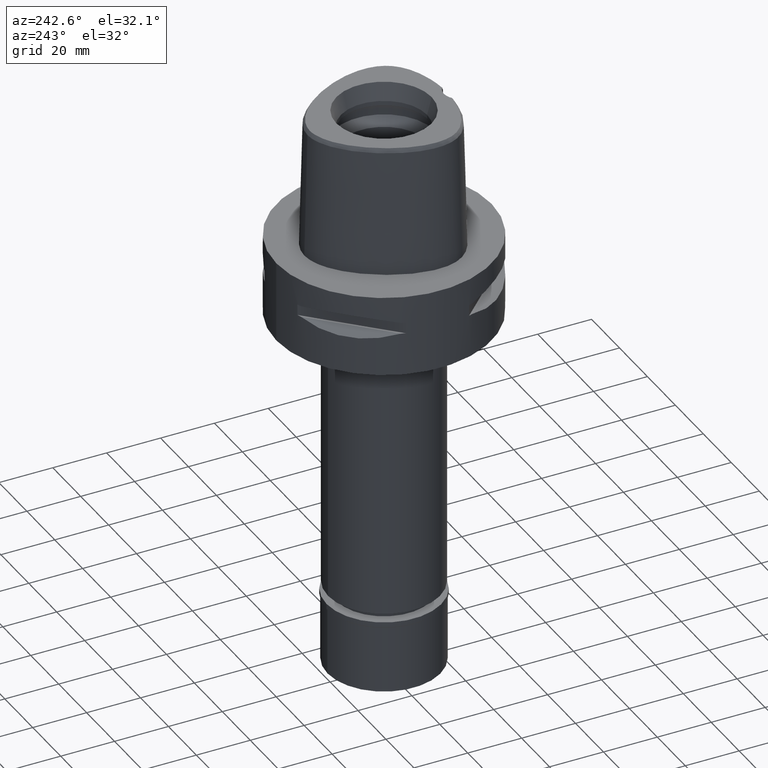
[diagram: clean part render]
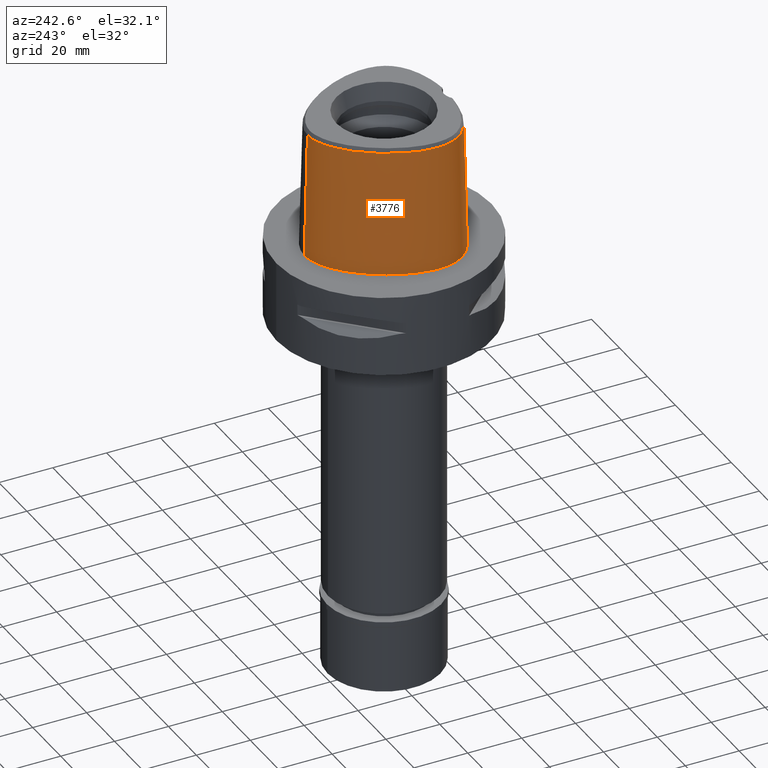
[diagram: same view with one face highlighted and labeled with its STEP entity id]
A machine part, auxiliary view. The second image highlights one B-rep face of the part: STEP entity #3776.
In plain terms, the highlighted face is a freeform B-spline surface patch.
Its self-contained STEP definition (entity closure, byte-faithful):
#2 = CARTESIAN_POINT ( 'NONE',  ( -11.74025986062749283, -24.13566408421613829, -8.981630610148221006E-07 ) ) ;
#31 = CARTESIAN_POINT ( 'NONE',  ( -13.21796082028640029, 24.04386720451877579, -8.981630610148221006E-07 ) ) ;
#78 = CARTESIAN_POINT ( 'NONE',  ( -1.733314166582773153, -24.81359117582309892, 29.20692116581517084 ) ) ;
#98 = CARTESIAN_POINT ( 'NONE',  ( 0.8462420188541999178, -25.18772735998999934, 15.19676978505999898 ) ) ;
#125 = CARTESIAN_POINT ( 'NONE',  ( -4.560197131398992632, -24.30012325357083469, 42.17356967723666372 ) ) ;
#143 = CARTESIAN_POINT ( 'NONE',  ( -3.994669282579361269, -24.83794919743792562, 22.82040209576821610 ) ) ;
#174 = CARTESIAN_POINT ( 'NONE',  ( -4.212409792926581353, -24.80756021599265537, 23.28005703556016925 ) ) ;
#195 = CARTESIAN_POINT ( 'NONE',  ( 0.8586475202579000321, 28.76398146971000003, 31.32395404676000084 ) ) ;
#196 = CARTESIAN_POINT ( 'NONE',  ( -4.525164906393139397, -24.74975131237584591, 24.43996234641500465 ) ) ;
#219 = EDGE_CURVE ( 'NONE', #2935, #3678, #4025, .T. ) ;
#221 = CARTESIAN_POINT ( 'NONE',  ( -4.406213798168644225, -24.77565163120073777, 23.85472934568140957 ) ) ;
#251 = CARTESIAN_POINT ( 'NONE',  ( -3.029613744919227081, -24.76954858878827892, 28.39612668127736939 ) ) ;
#275 = CARTESIAN_POINT ( 'NONE',  ( -9.316733117264998754, 26.81182150639000028, -0.9304144766363000585 ) ) ;
#282 = EDGE_CURVE ( 'NONE', #2354, #1239, #4342, .T. ) ;
#285 = CARTESIAN_POINT ( 'NONE',  ( -11.43620194735589379, -23.01113699853141981, 46.52070903171008354 ) ) ;
#299 = CARTESIAN_POINT ( 'NONE',  ( -26.36214112472999815, -1.945111148090999942, 47.45113830844999825 ) ) ;
#300 = CARTESIAN_POINT ( 'NONE',  ( -1.791332517422943749, -25.02133236723710041, 20.81740716610678987 ) ) ;
#330 = CARTESIAN_POINT ( 'NONE',  ( -26.79474625773000085, 1.906447387331000165, -0.9304144766363000585 ) ) ;
#333 = CARTESIAN_POINT ( 'NONE',  ( -25.63812391808772162, -14.80217774563364230, -8.981630610148221006E-07 ) ) ;
#362 = CARTESIAN_POINT ( 'NONE',  ( -26.01411827027999735, 1.699187959838000195, 31.32395404676000084 ) ) ;
#364 = CARTESIAN_POINT ( 'NONE',  ( -1.754298049354317213, -25.02308377135080875, 20.80178576367013932 ) ) ;
#366 = CARTESIAN_POINT ( 'NONE',  ( -27.10051719538249770, -11.41106445930717328, -8.981630610148221006E-07 ) ) ;
#371 = CARTESIAN_POINT ( 'NONE',  ( -1.344666072917000002E-11, 28.41206021534999593, 46.52071719450999154 ) ) ;
#388 = CARTESIAN_POINT ( 'NONE',  ( -16.83227270842000323, 18.76477913204999837, 47.45113830844999825 ) ) ;
#392 = CARTESIAN_POINT ( 'NONE',  ( -27.85475991996640488, -5.337968749434820914, -8.981630610148221006E-07 ) ) ;
#398 = CARTESIAN_POINT ( 'NONE',  ( -20.71467387648235459, -18.66855143331104827, 46.52070903171008354 ) ) ;
#447 = CARTESIAN_POINT ( 'NONE',  ( -11.43012069054000079, -22.98864609234000156, 47.45113830844999825 ) ) ;
#449 = CARTESIAN_POINT ( 'NONE',  ( -3.149084879360997125, 29.34015627206903787, -8.981630610148221006E-07 ) ) ;
#475 = CARTESIAN_POINT ( 'NONE',  ( -1.676286854296592299, -24.81504355059169242, 29.23004141242347842 ) ) ;
#479 = ORIENTED_EDGE ( 'NONE', *, *, #219, .T. ) ;
#493 = CARTESIAN_POINT ( 'NONE',  ( -20.94550185271999965, -18.97246395069999991, 31.32395404676000084 ) ) ;
#501 = CARTESIAN_POINT ( 'NONE',  ( 1.372734075386999954E-14, -24.83629963747999980, 29.55000000000000071 ) ) ;
#544 = CARTESIAN_POINT ( 'NONE',  ( -3.459328791574007411, -24.75086403572711191, 27.97515479134742833 ) ) ;
#564 = CARTESIAN_POINT ( 'NONE',  ( 0.5552374614105000106, 28.37983258526000085, 47.45113830844999825 ) ) ;
#565 = CARTESIAN_POINT ( 'NONE',  ( -3.205390121192459141, -24.76204090357540721, 28.22925085367090858 ) ) ;
#592 = CARTESIAN_POINT ( 'NONE',  ( -4.441732659387183979, -24.76864030037668840, 24.00221451032574294 ) ) ;
#600 = B_SPLINE_CURVE_WITH_KNOTS ( 'NONE', 3,
 ( #2272, #810, #4644, #5014 ),
 .UNSPECIFIED., .F., .F.,
 ( 4, 4 ),
 ( 0.0000000000000000000, 1.000000000000000000 ),
 .UNSPECIFIED. ) ;
#616 = CARTESIAN_POINT ( 'NONE',  ( -2.349040166738168622, -24.99044712210619679, 21.10040994411799176 ) ) ;
#626 = CARTESIAN_POINT ( 'NONE',  ( 3.071360863650999976E-11, 29.57499999998999840, 4.999704354228999432E-14 ) ) ;
#638 = CARTESIAN_POINT ( 'NONE',  ( -2.944900302943596948, -24.77298581947536249, 28.46923970402222182 ) ) ;
#664 = CARTESIAN_POINT ( 'NONE',  ( -26.50159628839000092, -8.602222732491000556, 47.45113830844999825 ) ) ;
#676 = CARTESIAN_POINT ( 'NONE',  ( -5.572548441001297981, -24.09475885057384303, 46.52070903171008354 ) ) ;
#690 = CARTESIAN_POINT ( 'NONE',  ( -23.81701507792000072, -15.41783917477999921, 47.45113830844999825 ) ) ;
#714 = CARTESIAN_POINT ( 'NONE',  ( -27.06950060128000146, -5.357664959697000739, 31.32395404676000084 ) ) ;
#739 = CARTESIAN_POINT ( 'NONE',  ( -26.66520868642000153, -5.367805582511000040, 47.45113830844999825 ) ) ;
#771 = CARTESIAN_POINT ( 'NONE',  ( -2.979937750745999647, 28.57037856398000031, 31.32395404676000084 ) ) ;
#782 = CARTESIAN_POINT ( 'NONE',  ( -16.85032607016413309, 18.77963051275659012, 46.52070903171008354 ) ) ;
#810 = CARTESIAN_POINT ( 'NONE',  ( -4.849489465481114265E-09, -24.66214466420069229, 36.51666702990934255 ) ) ;
#823 = CARTESIAN_POINT ( 'NONE',  ( -26.34912739279852190, -13.39455079027902329, -8.981630610148221006E-07 ) ) ;
#846 = CARTESIAN_POINT ( 'NONE',  ( -18.36798846969000110, -21.11924012392999828, 15.19676978505999898 ) ) ;
#852 = CARTESIAN_POINT ( 'NONE',  ( -1.003044292487226929, -24.82866638025620887, 29.44055839642895478 ) ) ;
#921 = CARTESIAN_POINT ( 'NONE',  ( -4.515545264919025747, -24.72200876241212697, 25.57765437787082163 ) ) ;
#941 = CARTESIAN_POINT ( 'NONE',  ( 0.8850788444128999677, 29.16624661484000214, 15.19676978505999898 ) ) ;
#942 = CARTESIAN_POINT ( 'NONE',  ( -3.797137772289172375, -24.86229941254662279, 22.49313827486260564 ) ) ;
#960 = CARTESIAN_POINT ( 'NONE',  ( -0.7475778414347999945, 29.63225228728000005, -0.9304144766363000585 ) ) ;
#962 = CARTESIAN_POINT ( 'NONE',  ( -2.771982096822934505, -24.77983138410381869, 28.61121349796145807 ) ) ;
#994 = CARTESIAN_POINT ( 'NONE',  ( -4.192714366875117449, -24.72178541175449595, 26.76740225216487090 ) ) ;
#1018 = CARTESIAN_POINT ( 'NONE',  ( -4.547910621292748701, -24.72974527037225911, 25.14250056299538727 ) ) ;
#1032 = EDGE_CURVE ( 'NONE', #2935, #2802, #3987, .T. ) ;
#1043 = CARTESIAN_POINT ( 'NONE',  ( -21.30723583794999954, 12.30173104416000029, 47.45113830844999825 ) ) ;
#1070 = CARTESIAN_POINT ( 'NONE',  ( -24.95856549634000032, -14.40983450743999938, 31.32395404676000084 ) ) ;
#1096 = CARTESIAN_POINT ( 'NONE',  ( -17.77103258628000049, 19.53703864447000171, -0.9304144766363000585 ) ) ;
#1098 = CARTESIAN_POINT ( 'NONE',  ( -1.165430911961757188, -25.05044697737379167, 20.55812161079594347 ) ) ;
#1105 = CARTESIAN_POINT ( 'NONE',  ( -25.64632274977799398, 1.601536978524745969, 46.52070903171008354 ) ) ;
#1117 = CARTESIAN_POINT ( 'NONE',  ( -22.00846693109999919, 12.70659196839000060, 15.19676978505999898 ) ) ;
#1119 = CARTESIAN_POINT ( 'NONE',  ( -1.769098408929377975, -25.02238666794960054, 20.80800104489343383 ) ) ;
#1120 = CARTESIAN_POINT ( 'NONE',  ( -27.68378756080767644, -8.751933596583231889, -8.981630610148221006E-07 ) ) ;
#1128 = EDGE_CURVE ( 'NONE', #1599, #2354, #2683, .T. ) ;
#1146 = CARTESIAN_POINT ( 'NONE',  ( -25.23075706182000033, 6.836210430566000085, -0.9304144766363000585 ) ) ;
#1177 = CARTESIAN_POINT ( 'NONE',  ( -18.56135208395999925, -21.47443746689999955, -0.9304144766363000585 ) ) ;
#1205 = EDGE_LOOP ( 'NONE', ( #4036, #3133, #3713, #2844, #4057, #479, #2349, #2022 ) ) ;
#1212 = VERTEX_POINT ( 'NONE', #2726 ) ;
#1227 = CARTESIAN_POINT ( 'NONE',  ( -6.584202217011000613, -24.46732447774000008, 31.32395404676000084 ) ) ;
#1239 = VERTEX_POINT ( 'NONE', #1551 ) ;
#1254 = EDGE_CURVE ( 'NONE', #3678, #2244, #3877, .T. ) ;
#1257 = CARTESIAN_POINT ( 'NONE',  ( -18.17462485540999850, -20.76404278096999789, 31.32395404676000084 ) ) ;
#1261 = EDGE_CURVE ( 'NONE', #1212, #1599, #600, .T. ) ;
#1262 = CARTESIAN_POINT ( 'NONE',  ( -1.984502176480205771, -24.80676203802992319, 29.09712838306113269 ) ) ;
#1276 = CARTESIAN_POINT ( 'NONE',  ( -14.86558287291999925, -21.85772792966999845, 47.45113830844999825 ) ) ;
#1279 = CARTESIAN_POINT ( 'NONE',  ( -2.492689275653129588, -24.79011428768484748, 28.80645659143079484 ) ) ;
#1303 = CARTESIAN_POINT ( 'NONE',  ( -4.494536868534346752, -24.72037511897826789, 25.72370608056143837 ) ) ;
#1331 = CARTESIAN_POINT ( 'NONE',  ( -4.536359085941239044, -24.72544551544415015, 25.35955479186053196 ) ) ;
#1353 = FACE_OUTER_BOUND ( 'NONE', #1205, .T. ) ;
#1354 = CARTESIAN_POINT ( 'NONE',  ( -3.310528231614959349, -24.91386642802240203, 21.87824841565020151 ) ) ;
#1375 = CARTESIAN_POINT ( 'NONE',  ( 0.5727458550623999445, 28.78269979473000362, 31.32395404676000084 ) ) ;
#1378 = CARTESIAN_POINT ( 'NONE',  ( -4.340344041599830227, -24.78724112967246995, 23.63256450709636525 ) ) ;
#1404 = CARTESIAN_POINT ( 'NONE',  ( -4.140463633215315298, -24.72339410617355782, 26.88684090363467050 ) ) ;
#1426 = CARTESIAN_POINT ( 'NONE',  ( -26.76156705728999796, -1.884109319980999953, 31.32395404676000084 ) ) ;
#1427 = CARTESIAN_POINT ( 'NONE',  ( -1.843442154715413395, -25.01881181296652912, 20.83994273181284385 ) ) ;
#1451 = CARTESIAN_POINT ( 'NONE',  ( -26.37046814540000028, -13.40391019819000107, -0.9304144766363000585 ) ) ;
#1482 = CARTESIAN_POINT ( 'NONE',  ( -17.14519266769999817, 19.02219896951999800, 31.32395404676000084 ) ) ;
#1495 = CARTESIAN_POINT ( 'NONE',  ( -5.810185802762860341, 27.27372406630062329, 46.52070903171008354 ) ) ;
#1509 = CARTESIAN_POINT ( 'NONE',  ( -25.62380427656000137, 1.595558246091000054, 47.45113830844999825 ) ) ;
#1534 = CARTESIAN_POINT ( 'NONE',  ( -27.70696775902000297, -8.754869100832999962, -0.9304144766363000585 ) ) ;
#1546 = CARTESIAN_POINT ( 'NONE',  ( -25.97777222568481648, -11.09135444107796786, 46.52070903171008354 ) ) ;
#1551 = CARTESIAN_POINT ( 'NONE',  ( -1.180411260321999901E-11, -25.57499999999999929, 5.639932965095998436E-14 ) ) ;
#1555 = CARTESIAN_POINT ( 'NONE',  ( -1.541632516112587448, -24.57506718850393312, 40.00000010711481480 ) ) ;
#1566 = CARTESIAN_POINT ( 'NONE',  ( -11.53552746531000039, -23.37848226520000239, 31.32395404676000084 ) ) ;
#1598 = B_SPLINE_CURVE_WITH_KNOTS ( 'NONE', 3,
 ( #2283, #3560, #449, #4280, #4360, #31, #2314, #4314, #2727, #3116, #3861, #392, #1120, #366, #823, #333, #1624, #2394, #2671, #3173, #3531, #2, #4253, #3974, #5054 ),
 .UNSPECIFIED., .F., .F.,
 ( 4, 1, 1, 1, 1, 1, 1, 1, 1, 1, 1, 1, 1, 1, 1, 1, 1, 1, 1, 1, 1, 1, 4 ),
 ( 0.0000000000000000000, 0.04166666666704999661, 0.08333333333368000972, 0.1250000000003000100, 0.1666666666670000019, 0.2500000000002000067, 0.3333333333335000148, 0.4166666666668000230, 0.4583333333333999837, 0.5000000000001000311, 0.5416666666667000474, 0.5833333333333000637, 0.6250000000000000000, 0.6458333333333000637, 0.6666666666667000474, 0.6874999999999000799, 0.7083333333332000326, 0.7499999999999000799, 0.7916666666666000163, 0.8333333333331000015, 0.8749999999998000488, 0.9166666666664999852, 1.000000000000000000 ),
 .UNSPECIFIED. ) ;
#1599 = VERTEX_POINT ( 'NONE', #3587 ) ;
#1604 = CARTESIAN_POINT ( 'NONE',  ( -4.516620139914707011, -24.24973684088320525, 44.34713935447333455 ) ) ;
#1622 = CARTESIAN_POINT ( 'NONE',  ( -11.64093424006999911, -23.76831843806999700, 15.19676978505999898 ) ) ;
#1624 = CARTESIAN_POINT ( 'NONE',  ( -24.77458495306543540, -16.12173829457910301, -8.981630610148221006E-07 ) ) ;
#1671 = CARTESIAN_POINT ( 'NONE',  ( 0.5689259951226000034, -25.59577895909999867, -0.9304144766363000585 ) ) ;
#1718 = CARTESIAN_POINT ( 'NONE',  ( -3.864901861996224319, -24.85421915751038924, 22.59833191710568556 ) ) ;
#1747 = CARTESIAN_POINT ( 'NONE',  ( -3.245740051672676429, -24.92006245179830159, 21.81130774429477981 ) ) ;
#1769 = CARTESIAN_POINT ( 'NONE',  ( -3.192130741525157855, -24.76262039752747057, 28.24235843699960569 ) ) ;
#1795 = CARTESIAN_POINT ( 'NONE',  ( -3.227056402119971690, -24.92183285210593269, 21.79239637393090590 ) ) ;
#1822 = CARTESIAN_POINT ( 'NONE',  ( -1.467048192861000018E-12, -25.06378435148999984, 20.44999999999999929 ) ) ;
#1844 = CARTESIAN_POINT ( 'NONE',  ( -24.48145224734999914, 6.531540504276000192, 31.32395404676000084 ) ) ;
#1866 = CARTESIAN_POINT ( 'NONE',  ( -27.47379251613999784, -5.347524336881999574, 15.19676978505999898 ) ) ;
#1867 = CARTESIAN_POINT ( 'NONE',  ( -1.979024681900256155, -25.01188081594408175, 20.90239184516246951 ) ) ;
#1879 = CARTESIAN_POINT ( 'NONE',  ( -23.83579125613754002, -15.43164133759193390, 46.52070903171008354 ) ) ;
#1896 = CARTESIAN_POINT ( 'NONE',  ( -23.44929528155000042, -17.78045351947999819, -0.9304144766363000585 ) ) ;
#1897 = CARTESIAN_POINT ( 'NONE',  ( -1.888484788632717848, -25.01654759054933308, 20.86028587657998656 ) ) ;
#1923 = CARTESIAN_POINT ( 'NONE',  ( -27.56041892240000024, -1.762105663762999930, -0.9304144766363000585 ) ) ;
#1932 = CARTESIAN_POINT ( 'NONE',  ( -26.52477687770683090, -8.605158286269631418, 46.52070903171008354 ) ) ;
#1948 = CARTESIAN_POINT ( 'NONE',  ( -2.354156828678999780, -24.81494221494999763, 31.32395404676000084 ) ) ;
#1950 = EDGE_CURVE ( 'NONE', #1212, #2802, #2745, .T. ) ;
#1959 = CARTESIAN_POINT ( 'NONE',  ( -1.467048192861000018E-12, -25.06378435148999984, 20.44999999999999929 ) ) ;
#1965 = CARTESIAN_POINT ( 'NONE',  ( -1.344666072917000002E-11, 28.41206021534999593, 46.52071719450999154 ) ) ;
#2005 = CARTESIAN_POINT ( 'NONE',  ( -17.98126124112999946, -20.40884543800000017, 47.45113830844999825 ) ) ;
#2022 = ORIENTED_EDGE ( 'NONE', *, *, #4986, .T. ) ;
#2049 = CARTESIAN_POINT ( 'NONE',  ( -6.695047936503000230, -25.26858194619999765, -0.9304144766363000585 ) ) ;
#2055 = CARTESIAN_POINT ( 'NONE',  ( -1.611811031578107345, -24.81663505490543642, 29.25526689574285299 ) ) ;
#2078 = CARTESIAN_POINT ( 'NONE',  ( -1.703896036126127278, -24.81434470502067668, 29.21892603896870710 ) ) ;
#2101 = CARTESIAN_POINT ( 'NONE',  ( -4.549596676163453424, -24.73138399865687731, 25.07048059281705576 ) ) ;
#2122 = VECTOR ( 'NONE', #3933, 1000.000000000000227 ) ;
#2127 = CARTESIAN_POINT ( 'NONE',  ( -3.790579096131103665, -24.86307050843588229, 22.48323682071577423 ) ) ;
#2155 = CARTESIAN_POINT ( 'NONE',  ( -3.232655617673357185, -24.92130312931369218, 21.79804365392788768 ) ) ;
#2178 = CARTESIAN_POINT ( 'NONE',  ( -4.098396066246055902, -24.72479182399337461, 26.97739233805751269 ) ) ;
#2201 = CARTESIAN_POINT ( 'NONE',  ( -4.198926685531663594, -24.72160612811941505, 26.75259212958650323 ) ) ;
#2229 = CARTESIAN_POINT ( 'NONE',  ( -8.894849814684999245, 26.12169678474999657, 31.32395404676000084 ) ) ;
#2239 = CARTESIAN_POINT ( 'NONE',  ( -7.937300651753208314, -23.78071178103738248, 46.52070903171008354 ) ) ;
#2244 = VERTEX_POINT ( 'NONE', #626 ) ;
#2251 = CARTESIAN_POINT ( 'NONE',  ( -3.067023398624999952, 28.96669974886000176, 15.19676978505999898 ) ) ;
#2272 = CARTESIAN_POINT ( 'NONE',  ( -1.451045074373000022E-08, -24.57504746727000011, 40.00000005214000254 ) ) ;
#2280 = CARTESIAN_POINT ( 'NONE',  ( -24.46791223562999917, -15.89630654127000042, 15.19676978505999898 ) ) ;
#2283 = CARTESIAN_POINT ( 'NONE',  ( 3.071360863650999976E-11, 29.57499999998999840, 4.999704354228999432E-14 ) ) ;
#2292 = CARTESIAN_POINT ( 'NONE',  ( -17.99241701171357022, -20.42933791837082325, 46.52070903171008354 ) ) ;
#2311 = CARTESIAN_POINT ( 'NONE',  ( -22.35908247767000034, 12.90902243050999942, -0.9304144766363000585 ) ) ;
#2314 = CARTESIAN_POINT ( 'NONE',  ( -17.75297952913286892, 19.52218751433636257, -8.981630610148221006E-07 ) ) ;
#2333 = CARTESIAN_POINT ( 'NONE',  ( -1.451045074373000022E-08, -24.57504746727000011, 40.00000005214000254 ) ) ;
#2343 = CARTESIAN_POINT ( 'NONE',  ( -12.43420517454000063, 23.14497629918999877, 47.45113830844999825 ) ) ;
#2349 = ORIENTED_EDGE ( 'NONE', *, *, #1254, .T. ) ;
#2351 = CARTESIAN_POINT ( 'NONE',  ( -12.44957317646415440, 23.16260189109142331, 46.52070903171008354 ) ) ;
#2354 = VERTEX_POINT ( 'NONE', #3488 ) ;
#2392 = CARTESIAN_POINT ( 'NONE',  ( 0.5595577616836999724, -24.78951189418000212, 31.32395404676000084 ) ) ;
#2394 = CARTESIAN_POINT ( 'NONE',  ( -23.43253030367175427, -17.76420411724730286, -8.981630610148221006E-07 ) ) ;
#2401 = CARTESIAN_POINT ( 'NONE',  ( -0.9629684636073007065, 28.41206041874476185, 46.52070903171008354 ) ) ;
#2421 = CARTESIAN_POINT ( 'NONE',  ( -1.150414049173519748, -24.82628098737378153, 29.40485804970605699 ) ) ;
#2436 = CARTESIAN_POINT ( 'NONE',  ( -2.373852718363999692, -25.21827345166000001, 15.19676978505999898 ) ) ;
#2440 = CARTESIAN_POINT ( 'NONE',  ( -2.466259342607413974, -24.79105701084885993, 28.82372012011356333 ) ) ;
#2487 = CARTESIAN_POINT ( 'NONE',  ( -4.549921019084919749, -24.74001865967037972, 24.72536366591872437 ) ) ;
#2506 = CARTESIAN_POINT ( 'NONE',  ( 0.5902542487144000205, 29.18556700418999839, 15.19676978505999898 ) ) ;
#2508 = CARTESIAN_POINT ( 'NONE',  ( -3.896481458106559881, -24.85034248778501365, 22.65020889969181539 ) ) ;
#2535 = CARTESIAN_POINT ( 'NONE',  ( -4.068466760403409488, -24.72584630863870103, 27.03834969239067121 ) ) ;
#2565 = CARTESIAN_POINT ( 'NONE',  ( -4.409270466782027498, -24.71744676443915267, 26.16158622813302514 ) ) ;
#2589 = CARTESIAN_POINT ( 'NONE',  ( -4.219931661120497779, -24.80642684597901848, 23.29859562715307675 ) ) ;
#2612 = CARTESIAN_POINT ( 'NONE',  ( -27.87808443100000133, -5.337383714068000273, -0.9304144766363000585 ) ) ;
#2638 = CARTESIAN_POINT ( 'NONE',  ( -25.26074793887000425, -12.91722051700000051, 47.45113830844999825 ) ) ;
#2648 = CARTESIAN_POINT ( 'NONE',  ( -4.472216406693000579, -24.20008985674000357, 46.52070903171000538 ) ) ;
#2667 = CARTESIAN_POINT ( 'NONE',  ( -21.65785138451999714, 12.50416150627000000, 31.32395404676000084 ) ) ;
#2671 = CARTESIAN_POINT ( 'NONE',  ( -21.42129060728322543, -19.59889650233153446, -8.981630610148221006E-07 ) ) ;
#2683 = B_SPLINE_CURVE_WITH_KNOTS ( 'NONE', 3,
 ( #501, #4395, #3614, #852, #2421, #3640, #4004, #2055, #475, #2078, #3252, #78, #3228, #1262, #3660, #4827, #2837, #4413, #2440, #1279, #4433, #4873, #2955, #962, #638, #251, #3270, #4096, #1769, #565, #3296, #544, #4562, #2882, #4459, #2535, #2178, #1404, #4123, #2929, #994, #2201, #4845, #3753, #2565, #1303, #921, #1331, #3784, #1018, #2101, #4949, #2487, #196, #592, #221, #1378, #4534, #2984, #4075, #2589, #174, #2905, #3680, #3372, #143, #3324, #2508, #1718, #3346, #4483, #942, #2127, #4153, #4505, #4897, #3704, #1354, #4176, #1747, #2155, #1795, #3729, #4921, #616, #3860, #3922, #1867, #1897, #1427, #300, #1119, #364, #4979, #1098, #4654, #1822 ),
 .UNSPECIFIED., .F., .F.,
 ( 4, 2, 2, 1, 1, 1, 2, 2, 2, 2, 1, 1, 2, 2, 2, 1, 1, 1, 2, 2, 2, 2, 2, 1, 1, 2, 2, 2, 2, 1, 2, 2, 2, 2, 1, 1, 1, 2, 2, 2, 2, 1, 1, 2, 2, 2, 1, 1, 1, 2, 2, 2, 2, 2, 1, 1, 2, 2, 4 ),
 ( 0.0000000000000000000, 0.06249999999998905043, 0.09374999999998356870, 0.1093749999999808348, 0.1171874999999794748, 0.1210937499999787531, 0.1230468749999785588, 0.1249999999999783507, 0.1562499999999781286, 0.1718749999999779621, 0.1796874999999778511, 0.1835937499999777678, 0.1855468749999779066, 0.1874999999999780176, 0.2187499999999800437, 0.2343749999999812650, 0.2421874999999818201, 0.2460937499999820977, 0.2480468749999824585, 0.2499999999999828471, 0.3125000000000057732, 0.3437500000000175415, 0.3593750000000238143, 0.3671875000000265343, 0.3710937500000279221, 0.3730468750000282552, 0.3750000000000285327, 0.4375000000000252576, 0.4687500000000232592, 0.4843750000000222045, 0.4921875000000220934, 0.5000000000000219824, 0.5625000000000232037, 0.5937500000000235367, 0.6093750000000233147, 0.6171875000000233147, 0.6210937500000229816, 0.6230468750000228706, 0.6250000000000227596, 0.6562500000000179856, 0.6718750000000157652, 0.6796875000000145439, 0.6835937500000139888, 0.6855468750000134337, 0.6875000000000128786, 0.7187500000000042188, 0.7343749999999995559, 0.7421874999999972244, 0.7460937499999960032, 0.7480468749999956701, 0.7499999999999952260, 0.8124999999999943379, 0.8437499999999938938, 0.8593749999999935607, 0.8671874999999934497, 0.8710937499999934497, 0.8730468749999934497, 0.8749999999999934497, 1.000000000000000000 ),
 .UNSPECIFIED. ) ;
#2689 = CARTESIAN_POINT ( 'NONE',  ( -3.083107012282212178, -24.50056602082081270, 40.00000010711481480 ) ) ;
#2695 = CARTESIAN_POINT ( 'NONE',  ( -13.23332856291999882, 24.06149249903999632, -0.9304144766363000585 ) ) ;
#2706 = CARTESIAN_POINT ( 'NONE',  ( -8.696078067630889308, 25.79654218449118730, 46.52070903171008354 ) ) ;
#2724 = CARTESIAN_POINT ( 'NONE',  ( -24.85610465458000107, 6.683875467420999250, 15.19676978505999898 ) ) ;
#2726 = CARTESIAN_POINT ( 'NONE',  ( -1.451045074373000022E-08, -24.57504746727000011, 40.00000005214000254 ) ) ;
#2727 = CARTESIAN_POINT ( 'NONE',  ( -25.20914252072918060, 6.827421883483855147, -8.981630610148221006E-07 ) ) ;
#2745 = B_SPLINE_CURVE_WITH_KNOTS ( 'NONE', 3,
 ( #2333, #1555, #2689, #3079 ),
 .UNSPECIFIED., .F., .F.,
 ( 4, 4 ),
 ( 0.0000000000000000000, 1.000000000000000000 ),
 .UNSPECIFIED. ) ;
#2755 = CARTESIAN_POINT ( 'NONE',  ( -2.393548608048999604, -25.62160468836999883, -0.9304144766363000585 ) ) ;
#2779 = CARTESIAN_POINT ( 'NONE',  ( 0.8392169873102000022, -24.78463084467999877, 31.32395404676000084 ) ) ;
#2783 = CARTESIAN_POINT ( 'NONE',  ( -4.472216406693000579, -24.20008985674000357, 46.52070903171000538 ) ) ;
#2802 = VERTEX_POINT ( 'NONE', #4924 ) ;
#2805 = CARTESIAN_POINT ( 'NONE',  ( -20.70054131283999865, -18.64994423039000182, 47.45113830844999825 ) ) ;
#2837 = CARTESIAN_POINT ( 'NONE',  ( -2.352923008986411268, -24.79499099983797450, 28.89459205334612335 ) ) ;
#2844 = ORIENTED_EDGE ( 'NONE', *, *, #1950, .T. ) ;
#2882 = CARTESIAN_POINT ( 'NONE',  ( -3.900686180413630577, -24.73222278675433472, 27.34720371155059837 ) ) ;
#2905 = CARTESIAN_POINT ( 'NONE',  ( -4.207829589086045985, -24.80824686016802261, 23.26889234074807078 ) ) ;
#2929 = CARTESIAN_POINT ( 'NONE',  ( -4.183313010706772417, -24.72206008749300921, 26.78965014441195791 ) ) ;
#2935 = VERTEX_POINT ( 'NONE', #2648 ) ;
#2955 = CARTESIAN_POINT ( 'NONE',  ( -2.652045588673545673, -24.78435656486181671, 28.70018943685019508 ) ) ;
#2984 = CARTESIAN_POINT ( 'NONE',  ( -4.256460948041309145, -24.80084657812259863, 23.39133378591556678 ) ) ;
#3005 = CARTESIAN_POINT ( 'NONE',  ( -26.73375370734000001, -11.30662581597000127, 15.19676978505999898 ) ) ;
#3028 = CARTESIAN_POINT ( 'NONE',  ( -25.63065467438000056, -13.07945041072999892, 31.32395404676000084 ) ) ;
#3056 = CARTESIAN_POINT ( 'NONE',  ( -6.639625076757000421, -24.86795321197000064, 15.19676978505999898 ) ) ;
#3058 = CARTESIAN_POINT ( 'NONE',  ( -26.90338677860000161, -8.653104855271999796, 31.32395404676000084 ) ) ;
#3079 = CARTESIAN_POINT ( 'NONE',  ( -4.602965878455999693, -24.35127227233000013, 40.00000000000000000 ) ) ;
#3085 = CARTESIAN_POINT ( 'NONE',  ( -24.60869384369000201, -14.20783601436000154, 47.45113830844999825 ) ) ;
#3113 = CARTESIAN_POINT ( 'NONE',  ( -27.12297207980999758, -11.41745865540999993, -0.9304144766363000585 ) ) ;
#3116 = CARTESIAN_POINT ( 'NONE',  ( -26.77222816444523446, 1.900468755770840401, -8.981630610148221006E-07 ) ) ;
#3133 = ORIENTED_EDGE ( 'NONE', *, *, #1128, .F. ) ;
#3173 = CARTESIAN_POINT ( 'NONE',  ( -18.55019650159792377, -21.45394533227971579, -8.981630610148221006E-07 ) ) ;
#3228 = CARTESIAN_POINT ( 'NONE',  ( -1.858668925429011187, -24.81033890557745281, 29.15501574767838733 ) ) ;
#3246 = CARTESIAN_POINT ( 'NONE',  ( -22.86810882073999807, -17.21714036496000233, 31.32395404676000084 ) ) ;
#3252 = CARTESIAN_POINT ( 'NONE',  ( -1.722296434336842763, -24.81387508079694015, 29.21144792399064016 ) ) ;
#3270 = CARTESIAN_POINT ( 'NONE',  ( -3.125212091967373595, -24.76551320166747416, 28.30726214217308723 ) ) ;
#3296 = CARTESIAN_POINT ( 'NONE',  ( -3.211065830876445037, -24.76179211193618457, 28.22361125334742482 ) ) ;
#3324 = CARTESIAN_POINT ( 'NONE',  ( -3.957281473798043514, -24.84276546235786043, 22.75305380327923999 ) ) ;
#3346 = CARTESIAN_POINT ( 'NONE',  ( -3.825895809632645417, -24.85889621362734303, 22.53711802513210216 ) ) ;
#3372 = CARTESIAN_POINT ( 'NONE',  ( -4.098306025962241250, -24.82420565877257346, 23.01795395542374578 ) ) ;
#3390 = B_SPLINE_SURFACE_WITH_KNOTS ( 'NONE', 3, 3, ( 
 ( #4093, #941, #195, #3728 ),
 ( #4948, #2506, #1375, #564 ),
 ( #960, #3781, #3832, #3921 ),
 ( #4581, #2251, #771, #3891 ),
 ( #4200, #3500, #3808, #3443 ),
 ( #275, #3474, #2229, #4977 ),
 ( #2695, #4631, #5026, #2343 ),
 ( #1096, #4276, #1482, #388 ),
 ( #2311, #1117, #2667, #1043 ),
 ( #1146, #2724, #1844, #5078 ),
 ( #330, #4251, #362, #1509 ),
 ( #1923, #3396, #1426, #299 ),
 ( #2612, #1866, #714, #739 ),
 ( #1534, #4226, #3058, #664 ),
 ( #3113, #3005, #4652, #3417 ),
 ( #1451, #4997, #3028, #2638 ),
 ( #4605, #4683, #1070, #3085 ),
 ( #3857, #2280, #4310, #690 ),
 ( #1896, #5051, #3246, #4719 ),
 ( #3635, #3529, #493, #2805 ),
 ( #1177, #846, #1257, #2005 ),
 ( #4744, #4821, #4384, #1276 ),
 ( #3998, #1622, #1566, #447 ),
 ( #2049, #3056, #1227, #4795 ),
 ( #2755, #2436, #1948, #4427 ),
 ( #1671, #4337, #2392, #4768 ),
 ( #3945, #98, #2779, #3971 ) ),
 .UNSPECIFIED., .F., .F., .F.,
 ( 4, 1, 1, 1, 1, 1, 1, 1, 1, 1, 1, 1, 1, 1, 1, 1, 1, 1, 1, 1, 1, 1, 1, 1, 4 ),
 ( 4, 4 ),
 ( -0.01204223939038000062, 0.0000000000000000000, 0.04166666666704999661, 0.08333333333368000972, 0.1250000000003000100, 0.1666666666670000019, 0.2500000000002000067, 0.3333333333335000148, 0.4166666666668000230, 0.4583333333333999837, 0.5000000000001000311, 0.5416666666667000474, 0.5833333333333000637, 0.6250000000000000000, 0.6458333333333000637, 0.6666666666667000474, 0.6874999999999000799, 0.7083333333332000326, 0.7499999999999000799, 0.7916666666666000163, 0.8333333333331000015, 0.8749999999998000488, 0.9166666666664999852, 1.000000000000000000, 1.008851807892999997 ),
 ( 5.338237064194999841E-09, 0.9999997277498999804 ),
 .UNSPECIFIED. ) ;
#3396 = CARTESIAN_POINT ( 'NONE',  ( -27.16099298984999777, -1.823107491872000052, 15.19676978505999898 ) ) ;
#3417 = CARTESIAN_POINT ( 'NONE',  ( -25.95531696239000041, -11.08496013709000039, 47.45113830844999825 ) ) ;
#3443 = CARTESIAN_POINT ( 'NONE',  ( -5.801139433146000002, 27.25218159654000161, 47.45113830844999825 ) ) ;
#3455 = CARTESIAN_POINT ( 'NONE',  ( -24.62887906780877501, -14.21948995895251144, 46.52070903171008354 ) ) ;
#3474 = CARTESIAN_POINT ( 'NONE',  ( -9.105791465975000776, 26.46675914556999842, 15.19676978505999898 ) ) ;
#3486 = CARTESIAN_POINT ( 'NONE',  ( -21.32746397970838004, 12.31340991043913924, 46.52070903171008354 ) ) ;
#3488 = CARTESIAN_POINT ( 'NONE',  ( -1.467048192861000018E-12, -25.06378435148999984, 20.44999999999999929 ) ) ;
#3500 = CARTESIAN_POINT ( 'NONE',  ( -6.114741924721999844, 27.99897533564999819, 15.19676978505999898 ) ) ;
#3509 = DIRECTION ( 'NONE',  ( -5.053220550043809941E-13, -0.02499051295420905497, -0.9996876883618630583 ) ) ;
#3529 = CARTESIAN_POINT ( 'NONE',  ( -21.19046239260000064, -19.29498367101000156, 15.19676978505999898 ) ) ;
#3531 = CARTESIAN_POINT ( 'NONE',  ( -15.29776367104423684, -22.96525392721420289, -8.981630610148221006E-07 ) ) ;
#3560 = CARTESIAN_POINT ( 'NONE',  ( -1.049694959834582830, 29.57500002245776471, -8.981630610148221006E-07 ) ) ;
#3587 = CARTESIAN_POINT ( 'NONE',  ( 1.372734075386999954E-14, -24.83629963747999980, 29.55000000000000071 ) ) ;
#3614 = CARTESIAN_POINT ( 'NONE',  ( -0.5644801122068425769, -24.83439132317404230, 29.52465347867333634 ) ) ;
#3635 = CARTESIAN_POINT ( 'NONE',  ( -21.43542293247999808, -19.61750339130999876, -0.9304144766363000585 ) ) ;
#3640 = CARTESIAN_POINT ( 'NONE',  ( -1.371865276106448261, -24.82198728018540734, 29.33894196721532310 ) ) ;
#3660 = CARTESIAN_POINT ( 'NONE',  ( -2.182391158249092911, -24.80062287573412760, 28.99314679185866339 ) ) ;
#3678 = VERTEX_POINT ( 'NONE', #4920 ) ;
#3680 = CARTESIAN_POINT ( 'NONE',  ( -4.156037652092123835, -24.81598364112163679, 23.14362525770374646 ) ) ;
#3704 = CARTESIAN_POINT ( 'NONE',  ( -3.399231802462692631, -24.90521494129050595, 21.97387284700376142 ) ) ;
#3713 = ORIENTED_EDGE ( 'NONE', *, *, #1261, .F. ) ;
#3728 = CARTESIAN_POINT ( 'NONE',  ( 0.8322161961028999855, 28.36171632456999703, 47.45113830844999825 ) ) ;
#3729 = CARTESIAN_POINT ( 'NONE',  ( -2.978031838721042046, -24.94531787462550199, 21.54303487591371891 ) ) ;
#3753 = CARTESIAN_POINT ( 'NONE',  ( -4.322680882352817555, -24.71812462909636210, 26.45319451589575266 ) ) ;
#3776 = ADVANCED_FACE ( 'NONE', ( #1353 ), #3390, .T. ) ;
#3780 = VECTOR ( 'NONE', #3509, 1000.000000000000114 ) ;
#3781 = CARTESIAN_POINT ( 'NONE',  ( -0.7257524945023999807, 29.22811259648999993, 15.19676978505999898 ) ) ;
#3784 = CARTESIAN_POINT ( 'NONE',  ( -4.544092989177815234, -24.72741046393047526, 25.25074796832975466 ) ) ;
#3808 = CARTESIAN_POINT ( 'NONE',  ( -5.957940678934000367, 27.62557846609999856, 31.32395404676000084 ) ) ;
#3832 = CARTESIAN_POINT ( 'NONE',  ( -0.7039271475700998870, 28.82397290569999981, 31.32395404676000084 ) ) ;
#3857 = CARTESIAN_POINT ( 'NONE',  ( -24.79336081449000062, -16.13554022451999970, -0.9304144766363000585 ) ) ;
#3860 = CARTESIAN_POINT ( 'NONE',  ( -2.224291573382352727, -24.99814500580220766, 21.02832322412745825 ) ) ;
#3861 = CARTESIAN_POINT ( 'NONE',  ( -27.53737514084405547, -1.765624996602713770, -8.981630610148221006E-07 ) ) ;
#3871 = CARTESIAN_POINT ( 'NONE',  ( -26.38518529508934662, -1.941591755871800995, 46.52070903171008354 ) ) ;
#3877 = LINE ( 'NONE', #1965, #2122 ) ;
#3891 = CARTESIAN_POINT ( 'NONE',  ( -2.892852102867000230, 28.17405737909999885, 47.45113830844999825 ) ) ;
#3921 = CARTESIAN_POINT ( 'NONE',  ( -0.6821018006376999843, 28.41983321492000059, 47.45113830844999825 ) ) ;
#3922 = CARTESIAN_POINT ( 'NONE',  ( -2.039991806420665021, -25.00858519317946360, 20.93235562228053226 ) ) ;
#3929 = CARTESIAN_POINT ( 'NONE',  ( -2.897876354790354991, 28.19692242654819125, 46.52070903171008354 ) ) ;
#3933 = DIRECTION ( 'NONE',  ( 9.489638221839231937E-13, 0.02499051293976060906, -0.9996876883622242138 ) ) ;
#3945 = CARTESIAN_POINT ( 'NONE',  ( 0.8532670503982000554, -25.59082387529999636, -0.9304144766363000585 ) ) ;
#3971 = CARTESIAN_POINT ( 'NONE',  ( 0.8321919557660999445, -24.38153432936999820, 47.45113830844999825 ) ) ;
#3974 = CARTESIAN_POINT ( 'NONE',  ( -2.676740186769421825, -25.57500002245401660, -8.981630610148221006E-07 ) ) ;
#3980 = CARTESIAN_POINT ( 'NONE',  ( -4.602965878455999693, -24.35127227233000013, 40.00000000000000000 ) ) ;
#3987 = B_SPLINE_CURVE_WITH_KNOTS ( 'NONE', 3,
 ( #2783, #1604, #125, #3980 ),
 .UNSPECIFIED., .F., .F.,
 ( 4, 4 ),
 ( 0.0000000000000000000, 1.000000000000000000 ),
 .UNSPECIFIED. ) ;
#3998 = CARTESIAN_POINT ( 'NONE',  ( -11.74634101483999871, -24.15815461093999872, -0.9304144766363000585 ) ) ;
#4004 = CARTESIAN_POINT ( 'NONE',  ( -1.482686770870140114, -24.81966152212502763, 29.30289444251079800 ) ) ;
#4025 = B_SPLINE_CURVE_WITH_KNOTS ( 'NONE', 3,
 ( #4211, #676, #2239, #285, #4664, #2292, #398, #4259, #1879, #3455, #4727, #1546, #1932, #4368, #3871, #1105, #4319, #3486, #782, #2351, #2706, #1495, #3929, #2401, #371 ),
 .UNSPECIFIED., .F., .F.,
 ( 4, 1, 1, 1, 1, 1, 1, 1, 1, 1, 1, 1, 1, 1, 1, 1, 1, 1, 1, 1, 1, 1, 4 ),
 ( 0.0000000000000000000, 0.03735859270279091870, 0.08111502030725240009, 0.1248714479117140064, 0.1686278755159655307, 0.2123843031204269982, 0.2561407307248886323, 0.2780189445270668247, 0.2998971583291401011, 0.3217753721314233761, 0.3436535859336017351, 0.3874100135380632026, 0.4311664411424197541, 0.4749228687467763610, 0.5186792963512379950, 0.5624357239555944910, 0.6499485791644125099, 0.7374614343732306398, 0.8249742895819437427, 0.8687307171864052657, 0.9124871447907828559, 0.9562435723951708821, 1.000000000000000000 ),
 .UNSPECIFIED. ) ;
#4036 = ORIENTED_EDGE ( 'NONE', *, *, #282, .F. ) ;
#4057 = ORIENTED_EDGE ( 'NONE', *, *, #1032, .F. ) ;
#4075 = CARTESIAN_POINT ( 'NONE',  ( -4.231109674115377750, -24.80473516988229221, 23.32640847146415197 ) ) ;
#4093 = CARTESIAN_POINT ( 'NONE',  ( 0.9115101685679000143, 29.56851175998000159, -0.9304144766363000585 ) ) ;
#4096 = CARTESIAN_POINT ( 'NONE',  ( -3.172181247292561235, -24.76348918694394285, 28.26195868750398077 ) ) ;
#4123 = CARTESIAN_POINT ( 'NONE',  ( -4.160790905031579001, -24.72274124955068686, 26.84178595757023444 ) ) ;
#4153 = CARTESIAN_POINT ( 'NONE',  ( -3.702709904148339781, -24.87336589807970100, 22.35148037005131272 ) ) ;
#4176 = CARTESIAN_POINT ( 'NONE',  ( -3.265305598819546518, -24.91820214815111711, 21.83126415608265702 ) ) ;
#4200 = CARTESIAN_POINT ( 'NONE',  ( -6.271543170511000298, 28.37237220520999870, -0.9304144766363000585 ) ) ;
#4211 = CARTESIAN_POINT ( 'NONE',  ( -4.472216406693000579, -24.20008985674000357, 46.52070903171000538 ) ) ;
#4226 = CARTESIAN_POINT ( 'NONE',  ( -27.30517726880999874, -8.703986978052000723, 15.19676978505999898 ) ) ;
#4251 = CARTESIAN_POINT ( 'NONE',  ( -26.40443226401000132, 1.802817673584000246, 15.19676978505999898 ) ) ;
#4253 = CARTESIAN_POINT ( 'NONE',  ( -6.691850466911849260, -25.24546877230646302, -8.981630610148221006E-07 ) ) ;
#4259 = CARTESIAN_POINT ( 'NONE',  ( -22.59428085107287743, -16.95173346409835347, 46.52070903171008354 ) ) ;
#4276 = CARTESIAN_POINT ( 'NONE',  ( -17.45811262699000110, 19.27961880698999764, 15.19676978505999898 ) ) ;
#4280 = CARTESIAN_POINT ( 'NONE',  ( -6.262496953525058530, 28.35083009891540939, -8.981630610148221006E-07 ) ) ;
#4310 = CARTESIAN_POINT ( 'NONE',  ( -24.14246365678000217, -15.65707285802999849, 31.32395404676000084 ) ) ;
#4314 = CARTESIAN_POINT ( 'NONE',  ( -22.33885467720221385, 12.89734376127693416, -8.981630610148221006E-07 ) ) ;
#4319 = CARTESIAN_POINT ( 'NONE',  ( -24.12841474588899615, 6.387994236496619571, 46.52070903171008354 ) ) ;
#4337 = CARTESIAN_POINT ( 'NONE',  ( 0.5642418784031000278, -25.19264542664000217, 15.19676978505999898 ) ) ;
#4342 = LINE ( 'NONE', #1959, #3780 ) ;
#4360 = CARTESIAN_POINT ( 'NONE',  ( -9.304563418361519567, 26.79191408171391231, -8.981630610148221006E-07 ) ) ;
#4368 = CARTESIAN_POINT ( 'NONE',  ( -26.68853359099298928, -5.367220537273253989, 46.52070903171008354 ) ) ;
#4384 = CARTESIAN_POINT ( 'NONE',  ( -15.01246784727999994, -22.23414198707000011, 31.32395404676000084 ) ) ;
#4395 = CARTESIAN_POINT ( 'NONE',  ( -0.2769662722958331491, -24.83629963747999980, 29.55000000000000071 ) ) ;
#4413 = CARTESIAN_POINT ( 'NONE',  ( -2.404910036721157773, -24.79321437770949998, 28.86288751850016610 ) ) ;
#4427 = CARTESIAN_POINT ( 'NONE',  ( -2.334460938993000223, -24.41161097823999881, 47.45113830844999825 ) ) ;
#4433 = CARTESIAN_POINT ( 'NONE',  ( -2.510338385227682156, -24.78948177504959816, 28.79484028636983695 ) ) ;
#4459 = CARTESIAN_POINT ( 'NONE',  ( -3.972636365752692633, -24.72937778087100469, 27.22257177643495751 ) ) ;
#4483 = CARTESIAN_POINT ( 'NONE',  ( -3.808704889424079809, -24.86093372512832289, 22.51074749453151114 ) ) ;
#4505 = CARTESIAN_POINT ( 'NONE',  ( -3.613911253851755934, -24.88311648731248482, 22.23154152753993529 ) ) ;
#4534 = CARTESIAN_POINT ( 'NONE',  ( -4.304263127651267951, -24.79330400446724525, 23.52125164125756740 ) ) ;
#4562 = CARTESIAN_POINT ( 'NONE',  ( -3.657706900528192584, -24.74222987758971115, 27.72260022702115734 ) ) ;
#4581 = CARTESIAN_POINT ( 'NONE',  ( -3.154109046503999814, 29.36302093374000322, -0.9304144766363000585 ) ) ;
#4605 = CARTESIAN_POINT ( 'NONE',  ( -25.65830880164000050, -14.81383149360000040, -0.9304144766363000585 ) ) ;
#4631 = CARTESIAN_POINT ( 'NONE',  ( -12.96695410013000149, 23.75598709908999950, 15.19676978505999898 ) ) ;
#4644 = CARTESIAN_POINT ( 'NONE',  ( -4.858283135684031119E-09, -24.74922215084299282, 33.03333351495449932 ) ) ;
#4652 = CARTESIAN_POINT ( 'NONE',  ( -26.34453533486999888, -11.19579297653000083, 31.32395404676000084 ) ) ;
#4654 = CARTESIAN_POINT ( 'NONE',  ( -0.5686770761292604393, -25.06378435149000339, 20.45000000000000995 ) ) ;
#4664 = CARTESIAN_POINT ( 'NONE',  ( -14.87405714085419639, -21.87944447072877097, 46.52070903171008354 ) ) ;
#4683 = CARTESIAN_POINT ( 'NONE',  ( -25.30843714899000219, -14.61183300052000078, 15.19676978505999898 ) ) ;
#4719 = CARTESIAN_POINT ( 'NONE',  ( -22.57751559032999822, -16.93548378770000085, 47.45113830844999825 ) ) ;
#4727 = CARTESIAN_POINT ( 'NONE',  ( -25.28208905154020414, -12.92658008282621473, 46.52070903171008354 ) ) ;
#4744 = CARTESIAN_POINT ( 'NONE',  ( -15.30623779600000134, -22.98697010186999989, -0.9304144766363000585 ) ) ;
#4768 = CARTESIAN_POINT ( 'NONE',  ( 0.5548736449643000279, -24.38637836172000206, 47.45113830844999825 ) ) ;
#4795 = CARTESIAN_POINT ( 'NONE',  ( -6.528779357264999916, -24.06669574351000307, 47.45113830844999825 ) ) ;
#4821 = CARTESIAN_POINT ( 'NONE',  ( -15.15935282164000064, -22.61055604447000178, 15.19676978505999898 ) ) ;
#4827 = CARTESIAN_POINT ( 'NONE',  ( -2.249867388139984214, -24.79844751147312465, 28.95562542824798058 ) ) ;
#4845 = CARTESIAN_POINT ( 'NONE',  ( -4.201380620709784353, -24.72153596869750913, 26.74670933509911563 ) ) ;
#4873 = CARTESIAN_POINT ( 'NONE',  ( -2.520279592226922993, -24.78912363236071315, 28.78824203054359288 ) ) ;
#4897 = CARTESIAN_POINT ( 'NONE',  ( -3.472208232089663671, -24.89783358727838447, 22.05860165752378776 ) ) ;
#4920 = CARTESIAN_POINT ( 'NONE',  ( -1.344666072917000002E-11, 28.41206021534999593, 46.52071719450999154 ) ) ;
#4921 = CARTESIAN_POINT ( 'NONE',  ( -2.724936705858741259, -24.96514019468460788, 21.34399272640271050 ) ) ;
#4924 = CARTESIAN_POINT ( 'NONE',  ( -4.602965878455999693, -24.35127227233000013, 40.00000000000000000 ) ) ;
#4948 = CARTESIAN_POINT ( 'NONE',  ( 0.6077626423664000965, 29.58843421366000115, -0.9304144766363000585 ) ) ;
#4949 = CARTESIAN_POINT ( 'NONE',  ( -4.550009659928407224, -24.73228693208369933, 25.03285394944704123 ) ) ;
#4977 = CARTESIAN_POINT ( 'NONE',  ( -8.683908163395999580, 25.77663442393000182, 47.45113830844999825 ) ) ;
#4979 = CARTESIAN_POINT ( 'NONE',  ( -1.748501813549813599, -25.02335543620022307, 20.79936485166495430 ) ) ;
#4986 = EDGE_CURVE ( 'NONE', #2244, #1239, #1598, .T. ) ;
#4997 = CARTESIAN_POINT ( 'NONE',  ( -26.00056140989000042, -13.24168030445999911, 15.19676978505999898 ) ) ;
#5014 = CARTESIAN_POINT ( 'NONE',  ( 1.372734075386999954E-14, -24.83629963747999980, 29.55000000000000071 ) ) ;
#5026 = CARTESIAN_POINT ( 'NONE',  ( -12.70057963734000062, 23.45048169913999914, 31.32395404676000084 ) ) ;
#5051 = CARTESIAN_POINT ( 'NONE',  ( -23.15870205113999702, -17.49879694221999671, 15.19676978505999898 ) ) ;
#5054 = CARTESIAN_POINT ( 'NONE',  ( -1.180411260321999901E-11, -25.57499999999999929, 5.639932965095998436E-14 ) ) ;
#5078 = CARTESIAN_POINT ( 'NONE',  ( -24.10679984010999632, 6.379205541131000246, 47.45113830844999825 ) ) ;